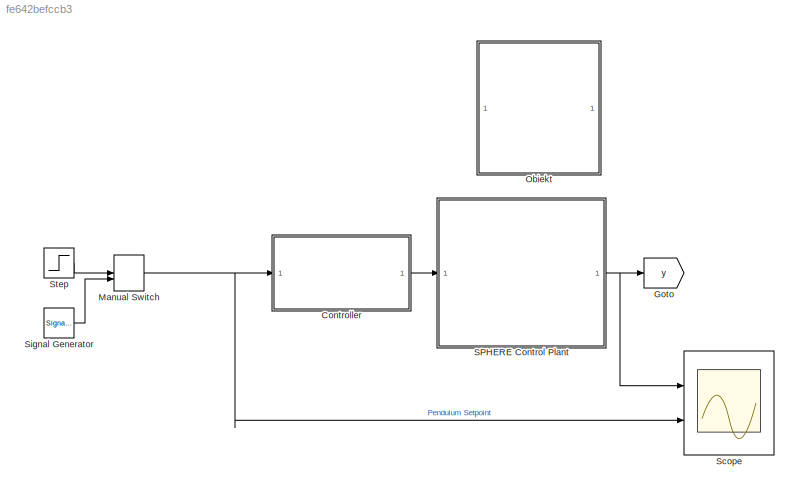
MODEL slx_fe642befccb3
KIND model
CONFIG AbsTol = auto
CONFIG EnableMultiTasking = off
CONFIG FixedStep = 10e-4
CONFIG MaxStep = auto
CONFIG MinStep = auto
CONFIG RelTol = 1e-3
CONFIG SampleTimeConstraint = Unconstrained
CONFIG Solver = ode4
CONFIG SolverName = ode4
CONFIG StartTime = 0.0
CONFIG StopTime = 20
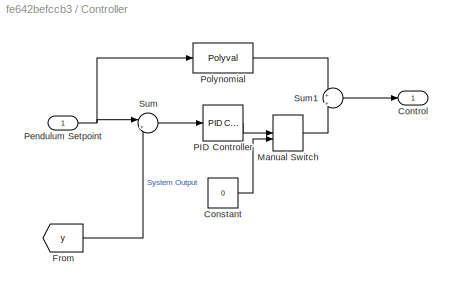
BLOCK [SubSystem] Controller
  Ports = [1, 1]
  RequestExecContextInheritance = off
BLOCK [Constant] Controller/Constant
  Value = 0
BLOCK [Outport] Controller/Control
BLOCK [From] Controller/From
  GotoTag = y
BLOCK [ManualSwitch] Controller/Manual Switch
  CurrentSetting = 0
BLOCK [Reference] Controller/PID Controller  REF=simulink/Continuous/PID Controller
  Ports = [1, 1]
  SourceBlock = simulink/Continuous/PID Controller
  SourceProductBaseCode = SL
  SourceType = PID 1dof
BLOCK [Inport] Controller/Pendulum Setpoint
BLOCK [Polyval] Controller/Polynomial
  Coefs = [0.000325 0.001274 1.044515 0]
BLOCK [Sum] Controller/Sum
  Inputs = |+-
  Ports = [2, 1]
BLOCK [Sum] Controller/Sum1
  Inputs = +|+
  Ports = [2, 1]
BLOCK [Goto] Goto
  GotoTag = y
BLOCK [ManualSwitch] Manual Switch
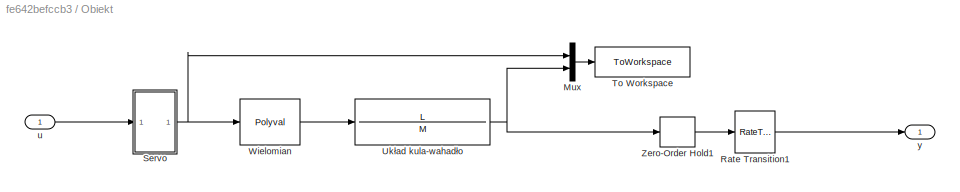
BLOCK [SubSystem] Obiekt
  Ports = [1, 1]
  RequestExecContextInheritance = off
BLOCK [Mux] Obiekt/Mux
  DisplayOption = bar
  Inputs = 2
  Ports = [2, 1]
BLOCK [RateTransition] Obiekt/Rate Transition1
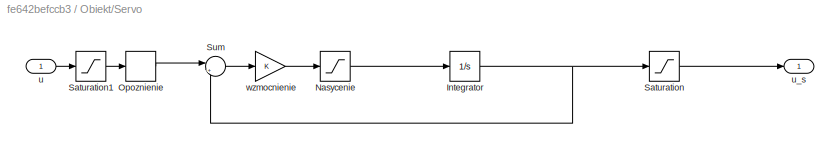
BLOCK [SubSystem] Obiekt/Servo
  Ports = [1, 1]
  RequestExecContextInheritance = off
BLOCK [Integrator] Obiekt/Servo/Integrator
  Ports = [1, 1]
BLOCK [Saturate] Obiekt/Servo/Nasycenie
  LowerLimit = Smin
  UpperLimit = Smax
BLOCK [TransportDelay] Obiekt/Servo/Opoznienie
  DelayTime = Top
  Ports = [1, 1]
BLOCK [Saturate] Obiekt/Servo/Saturation
  LowerLimit = -60
  UpperLimit = 60
BLOCK [Saturate] Obiekt/Servo/Saturation1
  LowerLimit = -60
  UpperLimit = 60
BLOCK [Sum] Obiekt/Servo/Sum
  Inputs = |+-
  Ports = [2, 1]
BLOCK [Inport] Obiekt/Servo/u
BLOCK [Outport] Obiekt/Servo/u_s
BLOCK [Gain] Obiekt/Servo/wzmocnienie
  Gain = K
BLOCK [ToWorkspace] Obiekt/To Workspace
  MaxDataPoints = inf
  Ports = [1]
  SampleTime = -1
  SaveFormat = Structure With Time
  VariableName = robot_data
BLOCK [TransferFcn] Obiekt/Układ kula-wahadło
  Denominator = M
  Numerator = L
BLOCK [Polyval] Obiekt/Wielomian
  Coefs = [-0.000067 -0.000287 0.871698 0]
BLOCK [ZeroOrderHold] Obiekt/Zero-Order Hold1
  SampleTime = Tprob
BLOCK [Inport] Obiekt/u
BLOCK [Outport] Obiekt/y
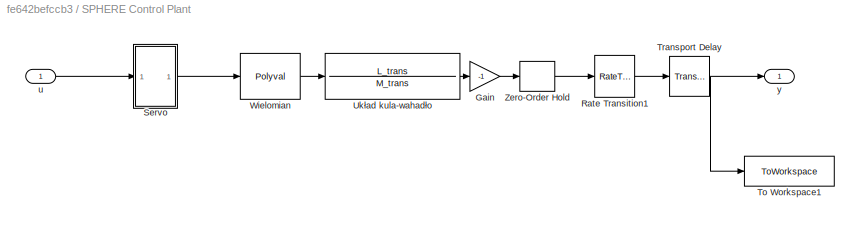
BLOCK [SubSystem] SPHERE Control Plant
  Ports = [1, 1]
  RequestExecContextInheritance = off
BLOCK [Gain] SPHERE Control Plant/Gain
  Gain = -1
BLOCK [RateTransition] SPHERE Control Plant/Rate Transition1
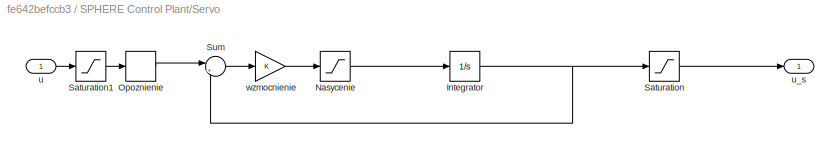
BLOCK [SubSystem] SPHERE Control Plant/Servo
  Ports = [1, 1]
  RequestExecContextInheritance = off
BLOCK [Integrator] SPHERE Control Plant/Servo/Integrator
  Ports = [1, 1]
BLOCK [Saturate] SPHERE Control Plant/Servo/Nasycenie
  LowerLimit = Smin
  UpperLimit = Smax
BLOCK [TransportDelay] SPHERE Control Plant/Servo/Opoznienie
  DelayTime = Top
  Ports = [1, 1]
BLOCK [Saturate] SPHERE Control Plant/Servo/Saturation
  LowerLimit = -60
  UpperLimit = 60
BLOCK [Saturate] SPHERE Control Plant/Servo/Saturation1
  LowerLimit = -60
  UpperLimit = 60
BLOCK [Sum] SPHERE Control Plant/Servo/Sum
  Inputs = |+-
  Ports = [2, 1]
BLOCK [Inport] SPHERE Control Plant/Servo/u
BLOCK [Outport] SPHERE Control Plant/Servo/u_s
BLOCK [Gain] SPHERE Control Plant/Servo/wzmocnienie
  Gain = K
BLOCK [ToWorkspace] SPHERE Control Plant/To Workspace1
  FixptAsFi = on
  MaxDataPoints = inf
  Ports = [1]
  SampleTime = -1
  SaveFormat = Timeseries
  VariableName = simout
BLOCK [TransportDelay] SPHERE Control Plant/Transport Delay
  DelayTime = delay_r
  Ports = [1, 1]
BLOCK [TransferFcn] SPHERE Control Plant/Układ kula-wahadło
  Denominator = M_trans
  Numerator = L_trans
BLOCK [Polyval] SPHERE Control Plant/Wielomian
  Coefs = [-0.000067 -0.000287 0.871698 0]
BLOCK [ZeroOrderHold] SPHERE Control Plant/Zero-Order Hold
  SampleTime = Tprob
BLOCK [Inport] SPHERE Control Plant/u
BLOCK [Outport] SPHERE Control Plant/y
BLOCK [Scope] Scope
  Floating = off
  NumInputPorts = 2
  Ports = [2]
  ScopeSpecificationString = Simulink.scopes.TimeScopeBlockCfg('CurrentConfiguration', extmgr.ConfigurationSet(extmgr.Configuration('Core','General UI',true),extmgr.Configuration('Core','Source UI',true),extmgr.Configuration('Sources','WiredSimulink',true),extmgr.Configuration('Visuals','Time Domain',true,'SerializedDisplays',{struct('MinYLimReal','-65.93209','MaxYLimReal','80.46472','YLabelReal','','MinYLimMag','0.00000','Ma...<+1421ch>
BLOCK [SignalGenerator] Signal Generator
  Amplitude = 45
  Frequency = 0.05
  Ports = [0, 1]
  WaveForm = square
BLOCK [Step] Step
  After = 0
  Before = 60
  SampleTime = 0
  Time = 0.7
LINE Controller/Constant:1 -> Controller/Manual Switch:2
LINE Controller/From:1 -> Controller/Sum:2
LINE Controller/Manual Switch:1 -> Controller/Sum1:2
LINE Controller/PID Controller:1 -> Controller/Manual Switch:1
NET Controller/Pendulum Setpoint:1 -> Controller/Polynomial:1, Controller/Sum:1
LINE Controller/Polynomial:1 -> Controller/Sum1:1
LINE Controller/Sum1:1 -> Controller/Control:1
LINE Controller/Sum:1 -> Controller/PID Controller:1
LINE Controller:1 -> SPHERE Control Plant:1
NET Manual Switch:1 -> Controller:1, Scope:2
LINE Obiekt/Mux:1 -> Obiekt/To Workspace:1
LINE Obiekt/Rate Transition1:1 -> Obiekt/y:1
NET Obiekt/Servo/Integrator:1 -> Obiekt/Servo/Saturation:1, Obiekt/Servo/Sum:2
LINE Obiekt/Servo/Nasycenie:1 -> Obiekt/Servo/Integrator:1
LINE Obiekt/Servo/Opoznienie:1 -> Obiekt/Servo/Sum:1
LINE Obiekt/Servo/Saturation1:1 -> Obiekt/Servo/Opoznienie:1
LINE Obiekt/Servo/Saturation:1 -> Obiekt/Servo/u_s:1
LINE Obiekt/Servo/Sum:1 -> Obiekt/Servo/wzmocnienie:1
LINE Obiekt/Servo/u:1 -> Obiekt/Servo/Saturation1:1
LINE Obiekt/Servo/wzmocnienie:1 -> Obiekt/Servo/Nasycenie:1
NET Obiekt/Servo:1 -> Obiekt/Mux:1, Obiekt/Wielomian:1
NET Obiekt/Układ kula-wahadło:1 -> Obiekt/Mux:2, Obiekt/Zero-Order Hold1:1
LINE Obiekt/Wielomian:1 -> Obiekt/Układ kula-wahadło:1
LINE Obiekt/Zero-Order Hold1:1 -> Obiekt/Rate Transition1:1
LINE Obiekt/u:1 -> Obiekt/Servo:1
LINE SPHERE Control Plant/Gain:1 -> SPHERE Control Plant/Zero-Order Hold:1
LINE SPHERE Control Plant/Rate Transition1:1 -> SPHERE Control Plant/Transport Delay:1
NET SPHERE Control Plant/Servo/Integrator:1 -> SPHERE Control Plant/Servo/Saturation:1, SPHERE Control Plant/Servo/Sum:2
LINE SPHERE Control Plant/Servo/Nasycenie:1 -> SPHERE Control Plant/Servo/Integrator:1
LINE SPHERE Control Plant/Servo/Opoznienie:1 -> SPHERE Control Plant/Servo/Sum:1
LINE SPHERE Control Plant/Servo/Saturation1:1 -> SPHERE Control Plant/Servo/Opoznienie:1
LINE SPHERE Control Plant/Servo/Saturation:1 -> SPHERE Control Plant/Servo/u_s:1
LINE SPHERE Control Plant/Servo/Sum:1 -> SPHERE Control Plant/Servo/wzmocnienie:1
LINE SPHERE Control Plant/Servo/u:1 -> SPHERE Control Plant/Servo/Saturation1:1
LINE SPHERE Control Plant/Servo/wzmocnienie:1 -> SPHERE Control Plant/Servo/Nasycenie:1
LINE SPHERE Control Plant/Servo:1 -> SPHERE Control Plant/Wielomian:1
NET SPHERE Control Plant/Transport Delay:1 -> SPHERE Control Plant/To Workspace1:1, SPHERE Control Plant/y:1
LINE SPHERE Control Plant/Układ kula-wahadło:1 -> SPHERE Control Plant/Gain:1
LINE SPHERE Control Plant/Wielomian:1 -> SPHERE Control Plant/Układ kula-wahadło:1
LINE SPHERE Control Plant/Zero-Order Hold:1 -> SPHERE Control Plant/Rate Transition1:1
LINE SPHERE Control Plant/u:1 -> SPHERE Control Plant/Servo:1
NET SPHERE Control Plant:1 -> Goto:1, Scope:1
LINE Signal Generator:1 -> Manual Switch:2
LINE Step:1 -> Manual Switch:1
note: NET lines group one-source signal fan-out (src -> all destinations, sorted); 1:1 wires keep LINE
